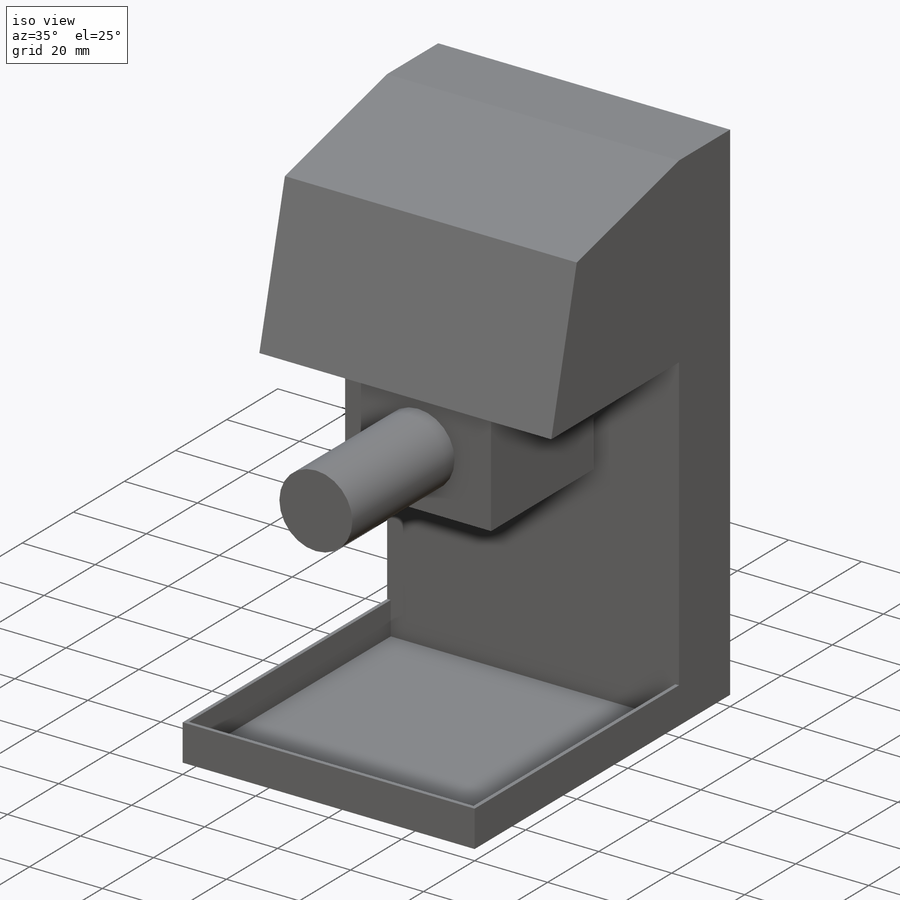
[diagram: iso view]
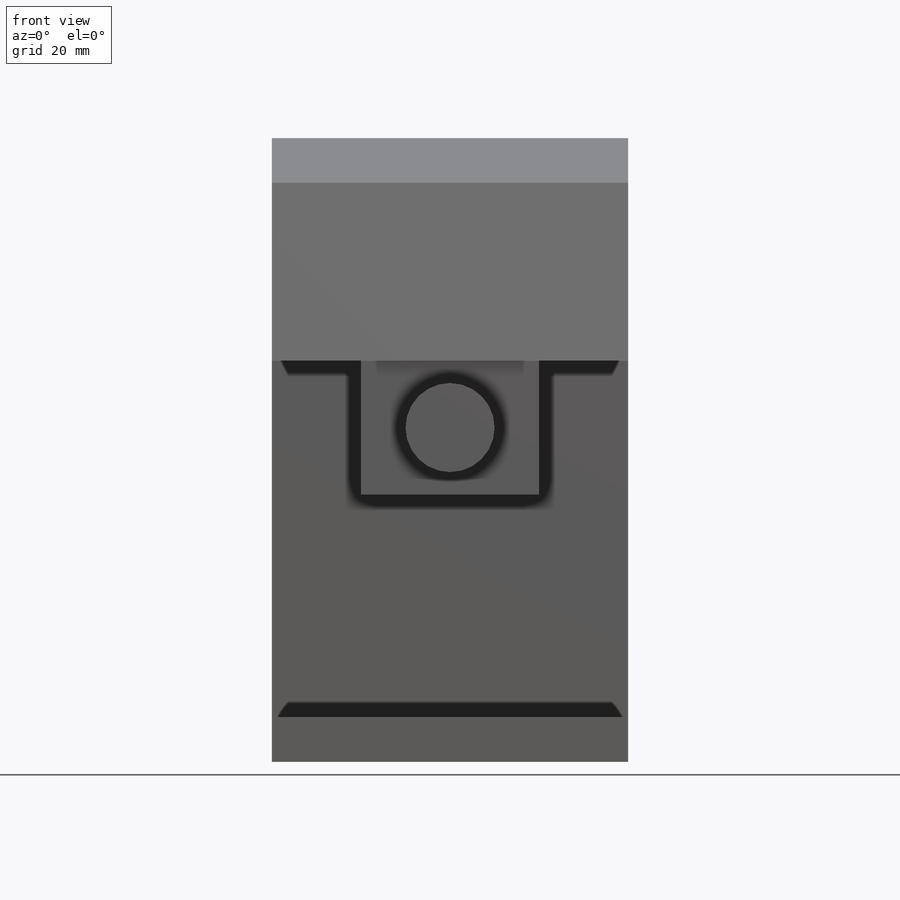
[diagram: front view]
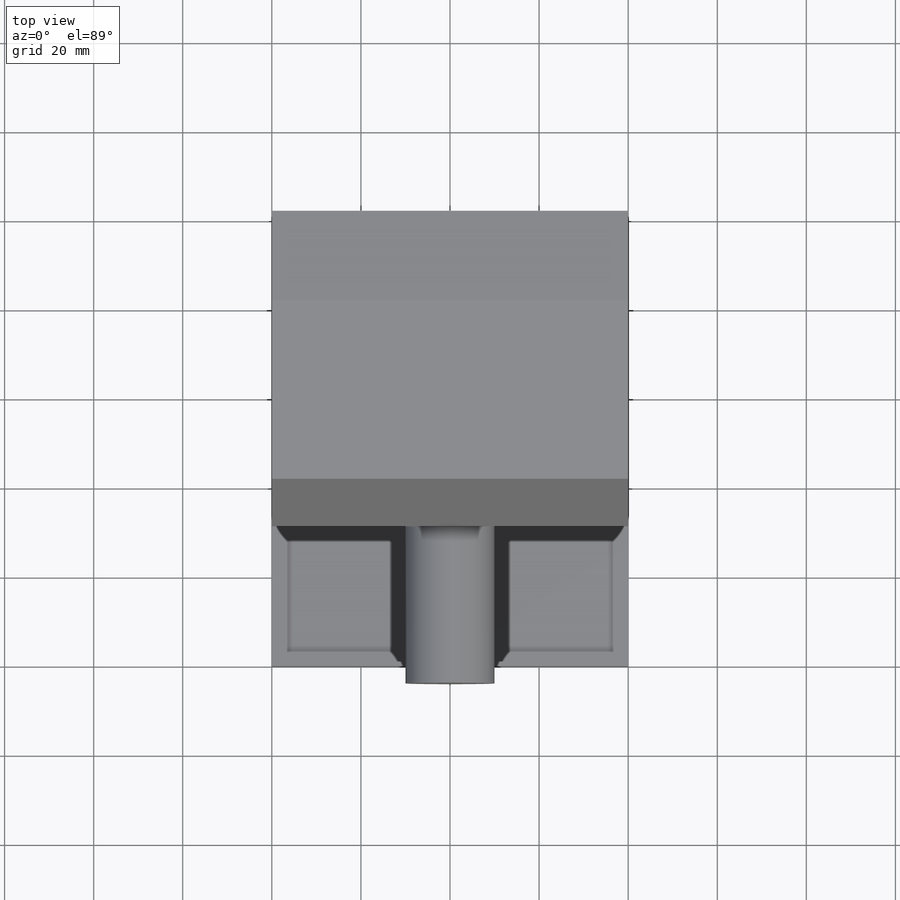
[diagram: top view]
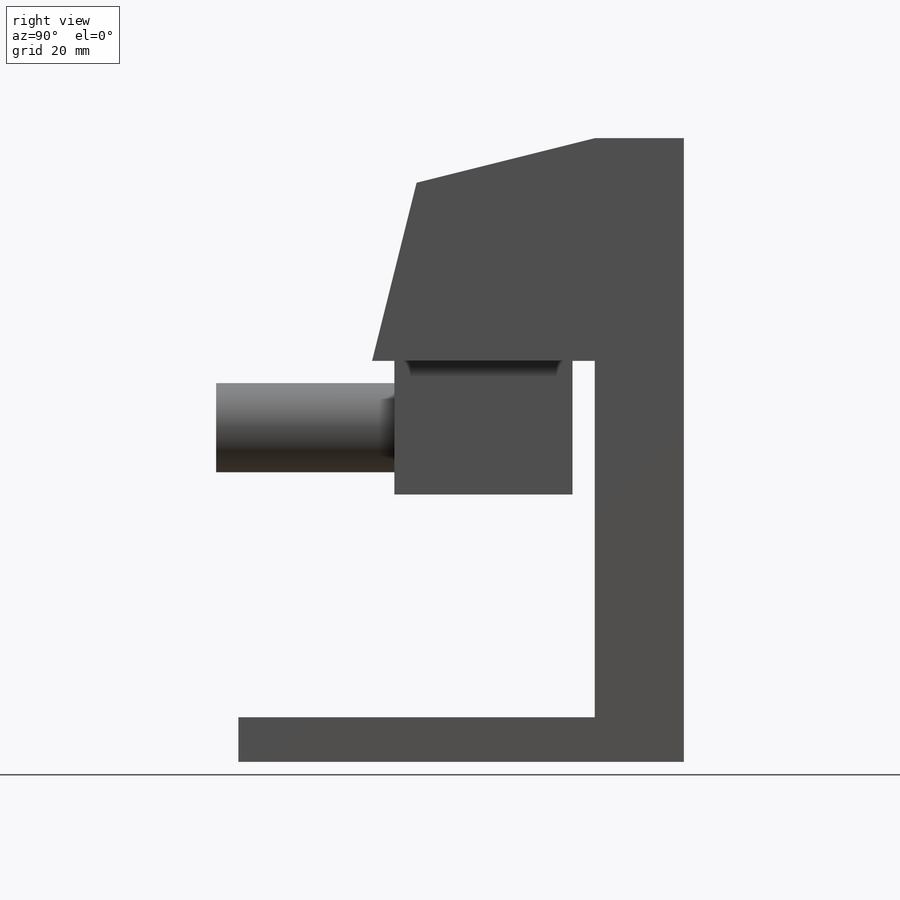
[diagram: right view]
SOLIDWORKS PART (.sldprt)
format: sldprt  version: not decoded by parser v0  size: 216,576 bytes
history: native  units: mm
features: sketch x4, extrude x3, material x1, cut_extrude x1 (+12 scaffold rows collapsed)
feature tree (21):
  scaffold x12  (default folders/planes/origin — collapsed)
  material  "Material <not specified>"
  sketch  "Sketch1"  dims[c1.D1=140.0mm c1.D2=100.0mm c1.D3=10.0mm c1.D4=20.0mm c1.D5=20.0mm c1.D6=40.0mm c1.D7=10.0mm c1.D8=40.0mm c1.D9=~41.231056mm c1.D10=~41.001931mm c1.D11=~41.001931mm c2.D10=~41.001931mm c2.D11=~41.001931mm c3.D10=~41.001931mm c3.D11=~41.001931mm c4.D10=~41.001931mm c4.D11=~41.001931mm c5.D10=~41.001931mm c5.D11=~41.001931mm c6.D10=~41.001931mm c6.D8=~41.001931mm c6.D9=50.0mm c7.D8=40.0mm c7.D9=10.0mm]
  extrude  "Boss-Extrude1"  Depth=80mm
  sketch  "Sketch2"  dims[c1.D2=~107.29119mm c1.D1=~21.756775mm c2.D2=~33.945393mm c2.D1=40.0mm c3.D2=~182.762012mm]
  extrude  "Boss-Extrude2"  Depth=30mm
  sketch  "Sketch3"  dims[c1.D1=20.0mm c1.D2=20.0mm c1.D3=~25.604486mm c2.D3=90.0deg c3.D3=15.0mm]
  extrude  "Boss-Extrude3"  Depth=40mm
  sketch  "Sketch4"  dims[c1.D1=~76.026399mm c1.D2=~71.692217mm c2.D1=1.0mm c2.D2=1.0mm c2.D3=1.0mm]
  cut_extrude  "Cut-Extrude1"  Depth=1mm
decode coverage: 8 of 8 modeling features carry decoded parameters
note: ~ marks probable driven/reference dimensions
note: suppression state not decoded; provenance and decode notes live in map.json
